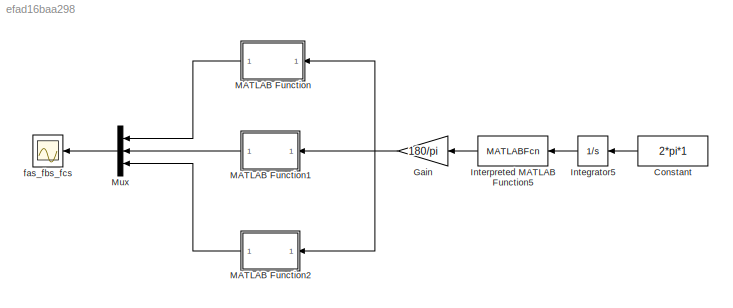
MODEL slx_efad16baa298
KIND model
CONFIG AbsTol = auto
CONFIG EnableMultiTasking = off
CONFIG FixedStep = auto
CONFIG MaxStep = 0.001
CONFIG MinStep = auto
CONFIG RelTol = 1e-3
CONFIG SampleTimeConstraint = Unconstrained
CONFIG SolverName = VariableStepAuto
CONFIG StartTime = 0.0
CONFIG StopTime = 1
BLOCK [Constant] Constant
  Value = 2*pi*1
BLOCK [Gain] Gain
  Gain = 180/pi
BLOCK [Integrator] Integrator5
BLOCK [MATLABFcn] Interpreted MATLAB Function5
  MATLABFcn = mod(u, 2*pi)
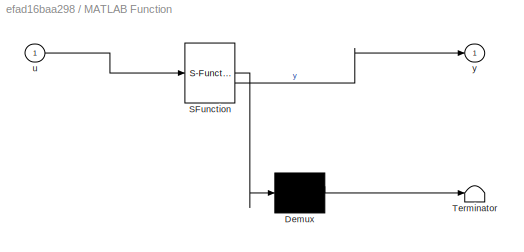
BLOCK [SubSystem] MATLAB Function
  ErrorFcn = Stateflow.Translate.translate
  LibrarySourceBlock = simulink/User-Defined\nFunctions/MATLAB Function
  PermitHierarchicalResolution = ExplicitOnly
  SFBlockType = MATLAB Function
  TreatAsAtomicUnit = on
BLOCK [Demux] MATLAB Function/ Demux 
  Outputs = 1
BLOCK [S-Function] MATLAB Function/ SFunction 
  EnableBusSupport = on
  FunctionName = sf_sfun
  PortCounts = [1 2]
  SFcnIsStateOwnerBlock = off
  SFunctionDeploymentMode = off
  Tag = Stateflow S-Function 2
BLOCK [Terminator] MATLAB Function/ Terminator 
BLOCK [Inport] MATLAB Function/u
BLOCK [Outport] MATLAB Function/y
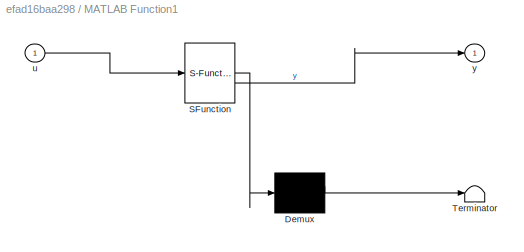
BLOCK [SubSystem] MATLAB Function1
  ErrorFcn = Stateflow.Translate.translate
  LibrarySourceBlock = simulink/User-Defined\nFunctions/MATLAB Function
  PermitHierarchicalResolution = ExplicitOnly
  SFBlockType = MATLAB Function
  TreatAsAtomicUnit = on
BLOCK [Demux] MATLAB Function1/ Demux 
  Outputs = 1
BLOCK [S-Function] MATLAB Function1/ SFunction 
  EnableBusSupport = on
  FunctionName = sf_sfun
  PortCounts = [1 2]
  SFcnIsStateOwnerBlock = off
  SFunctionDeploymentMode = off
  Tag = Stateflow S-Function 1
BLOCK [Terminator] MATLAB Function1/ Terminator 
BLOCK [Inport] MATLAB Function1/u
BLOCK [Outport] MATLAB Function1/y
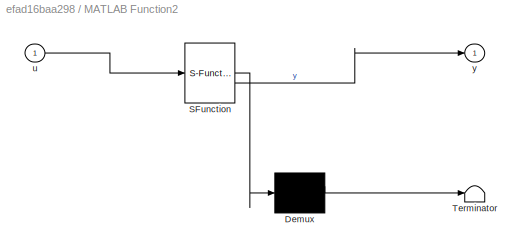
BLOCK [SubSystem] MATLAB Function2
  ErrorFcn = Stateflow.Translate.translate
  LibrarySourceBlock = simulink/User-Defined\nFunctions/MATLAB Function
  PermitHierarchicalResolution = ExplicitOnly
  SFBlockType = MATLAB Function
  TreatAsAtomicUnit = on
BLOCK [Demux] MATLAB Function2/ Demux 
  Outputs = 1
BLOCK [S-Function] MATLAB Function2/ SFunction 
  EnableBusSupport = on
  FunctionName = sf_sfun
  PortCounts = [1 2]
  SFcnIsStateOwnerBlock = off
  SFunctionDeploymentMode = off
  Tag = Stateflow S-Function 3
BLOCK [Terminator] MATLAB Function2/ Terminator 
BLOCK [Inport] MATLAB Function2/u
BLOCK [Outport] MATLAB Function2/y
BLOCK [Mux] Mux
  DisplayOption = bar
  Inputs = 3
BLOCK [Scope] fas_fbs_fcs
  Floating = off
  NumInputPorts = 1
  ScopeSpecificationString = Simulink.scopes.TimeScopeBlockCfg('CurrentConfiguration', extmgr.ConfigurationSet(extmgr.Configuration('Core','General UI',true,'FigureColor',[1 1 1]),extmgr.Configuration('Core','Source UI',true),extmgr.Configuration('Sources','WiredSimulink',true,'DataLogging',true,'DataLoggingVariableName','f','DataLoggingSaveFormat','Structure'),extmgr.Configuration('Visuals','Time Domain',true,'SerializedDisp...<+1804ch>
LINE Constant:1 -> Integrator5:1
NET Gain:1 -> MATLAB Function1:1, MATLAB Function2:1, MATLAB Function:1
LINE Integrator5:1 -> Interpreted MATLAB Function5:1
LINE Interpreted MATLAB Function5:1 -> Gain:1
LINE MATLAB Function1:1 -> Mux:2
LINE MATLAB Function2:1 -> Mux:3
LINE MATLAB Function:1 -> Mux:1
LINE Mux:1 -> fas_fbs_fcs:1
note: NET lines group one-source signal fan-out (src -> all destinations, sorted); 1:1 wires keep LINE
CHART MATLAB Function states=1 transitions=1
  STATE_LABEL 'eML_blk_kernel()'
  STATE_LABEL 'SCRIPT:\nfunction y = fas(u)\n    if ((u>=0) && (u<30))\n        y = u/30;\n    elseif ((u>=30) && (u<150))\n        y = 1;\n    elseif ((u>=150) && (u<210))\n        y = -u/30 + 6;\n    elseif ((u>=210) && (u<330))\n        y = -1;\n    elseif ((u>=330) && (u<=360))\n        y = u/30 - 12;\n    else\n        y = 0;\n    end\nend\n'
CHART MATLAB Function2 states=1 transitions=1
  STATE_LABEL 'eML_blk_kernel()'
  STATE_LABEL 'SCRIPT:\nfunction y = fcs(u)\n    if ((u>=0) && (u<30))\n        y = 1;\n    elseif ((u>=30) && (u<90))\n        y = -u/30 + 2;\n    elseif ((u>=90) && (u<210))\n        y = -1;\n    elseif ((u>=210) && (u<270))\n        y = u/30 - 8;\n    elseif ((u>=270) && (u<=360))\n        y = 1;\n    else \n        y = 0;\n    end\nend'
CHART MATLAB Function1 states=1 transitions=1
  STATE_LABEL 'eML_blk_kernel()'
  STATE_LABEL 'SCRIPT:\nfunction y = fbs(u)\n    if ((u>=0) && (u<90))\n        y = -1;\n    elseif ((u>=90) && (u<150))\n        y = u/30 - 4;\n    elseif ((u>=150) && (u<270))\n        y = 1;\n    elseif ((u>=270) && (u<330))\n        y = -u/30 + 10;\n    elseif ((u>=330) && (u<=360))\n        y = -1;\n    else\n        y = 0;\n    end\nend'
CHART  states=0 transitions=0
CHART  states=0 transitions=0
CHART  states=0 transitions=0
